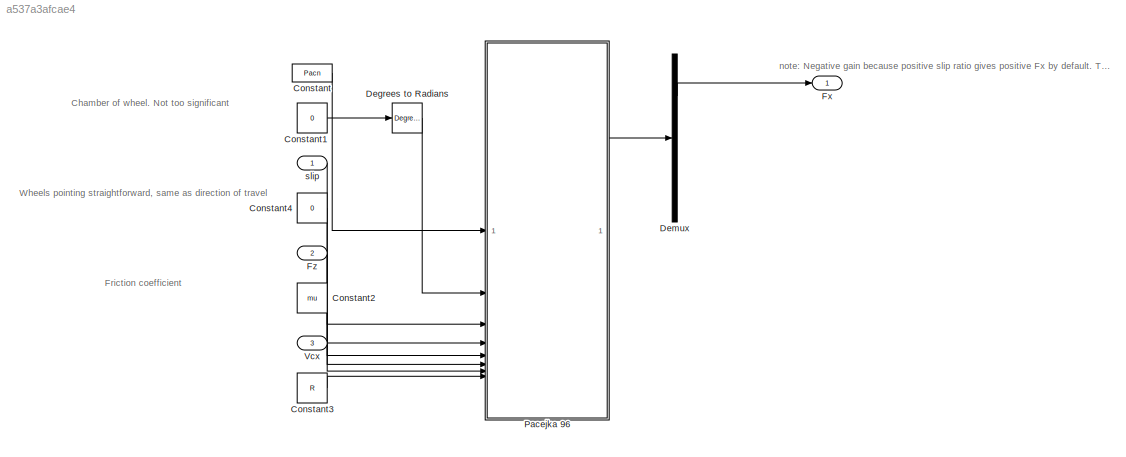
MODEL slx_a537a3afcae4
KIND model
CONFIG AbsTol = auto
CONFIG EnableMultiTasking = off
CONFIG FixedStep = 0.001
CONFIG MaxStep = auto
CONFIG MinStep = auto
CONFIG RelTol = 1e-3
CONFIG SampleTimeConstraint = Unconstrained
CONFIG SolverName = ode4
CONFIG StartTime = 0.0
CONFIG StopTime = 11
BLOCK [Constant] Constant
  Value = Pacn
BLOCK [Constant] Constant1
  Value = 0
BLOCK [Constant] Constant2
  Value = mu
BLOCK [Constant] Constant3
  Value = R
BLOCK [Constant] Constant4
  Value = 0
BLOCK [Reference] Degrees to Radians  REF=simulink_extras/Transformations/Degrees to
Radians
  SourceBlock = simulink_extras/Transformations/Degrees to\nRadians
  SourceType = DegreesToRadians
BLOCK [Demux] Demux
  Outputs = 3
BLOCK [Outport] Fx
BLOCK [Inport] Fz
  Port = 2
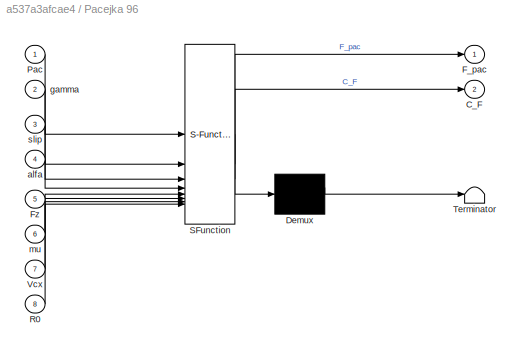
BLOCK [SubSystem] Pacejka 96
  ErrorFcn = Stateflow.Translate.translate
  PermitHierarchicalResolution = ExplicitOnly
  SFBlockType = MATLAB Function
  TreatAsAtomicUnit = on
BLOCK [Demux] Pacejka 96/ Demux 
  Outputs = 1
BLOCK [S-Function] Pacejka 96/ SFunction 
  EnableBusSupport = on
  FunctionName = sf_sfun
  PortCounts = [8 3]
  SFcnIsStateOwnerBlock = off
  SFunctionDeploymentMode = off
  Tag = Stateflow S-Function 1
BLOCK [Terminator] Pacejka 96/ Terminator 
BLOCK [Outport] Pacejka 96/C_F
  Port = 2
BLOCK [Outport] Pacejka 96/F_pac
BLOCK [Inport] Pacejka 96/Fz
  Port = 5
BLOCK [Inport] Pacejka 96/Pac
BLOCK [Inport] Pacejka 96/R0
  Port = 8
BLOCK [Inport] Pacejka 96/Vcx
  Port = 7
BLOCK [Inport] Pacejka 96/alfa
  Port = 4
BLOCK [Inport] Pacejka 96/gamma
  Port = 2
BLOCK [Inport] Pacejka 96/mu
  Port = 6
BLOCK [Inport] Pacejka 96/slip
  Port = 3
BLOCK [Inport] Vcx
  Port = 3
BLOCK [Inport] slip
ANNOTATION (root): Friction coefficient
ANNOTATION (root): Chamber of wheel. Not too significant
ANNOTATION (root): Wheels pointing straightforward, same as direction of travel
ANNOTATION (root): note: Negative gain because positive slip ratio gives positive Fx by default. This is not correct with respect to our slip calculator and general intuition!!
LINE Constant1:1 -> Degrees to Radians:1
LINE Constant2:1 -> Pacejka 96:6
LINE Constant3:1 -> Pacejka 96:8
LINE Constant4:1 -> Pacejka 96:4
LINE Constant:1 -> Pacejka 96:1
LINE Degrees to Radians:1 -> Pacejka 96:2
LINE Demux:1 -> Fx:1
LINE Fz:1 -> Pacejka 96:5
LINE Pacejka 96:1 -> Demux:1
LINE Vcx:1 -> Pacejka 96:7
LINE slip:1 -> Pacejka 96:3
CHART Pacejka 96 states=1 transitions=1
  STATE_LABEL 'eML_blk_kernel()'
  STATE_LABEL 'SCRIPT:\nfunction [F_pac,C_F] = fcn(Pac,gamma,slip,alfa,Fz,mu,Vcx,R0)\n% function for computing forces Fx, Fy and self-aligning torque Mz\n\n% Pac   -> model structure with coeff. Pacejka 96\n% slip  -> slip ratio [-] (-1:1)\n% alfa  -> slip angle [rad]\n% gamma -> camber [rad]\n% Vcx,y velocity components of tire contact point C\n\n% Structure building: Pacejka model coefficients\nPa_FZ0_ = Pac(1);\nPa_LFZ0 ...<+3608ch>'
CHART  states=0 transitions=0
